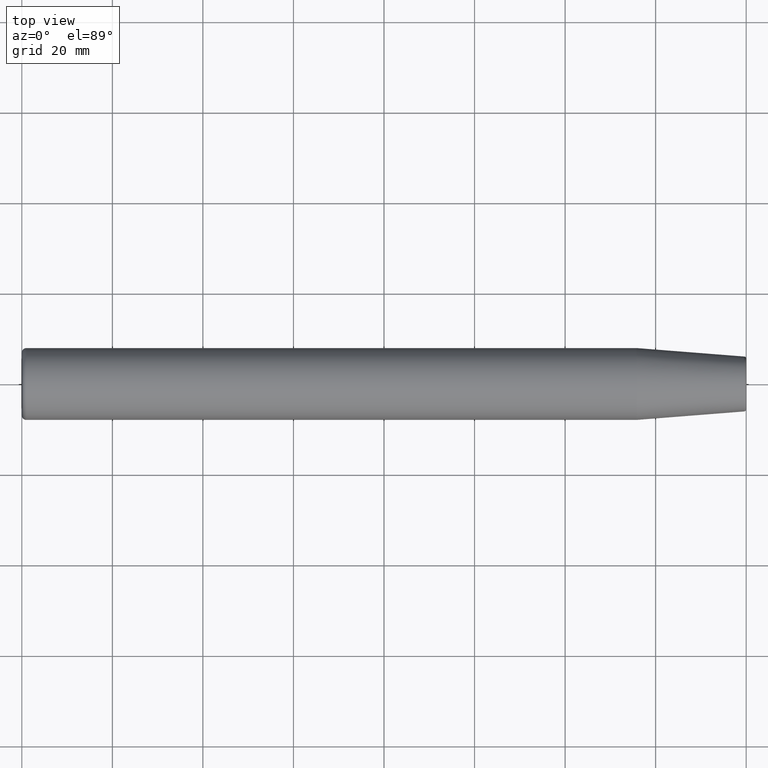
[diagram: clean part render]
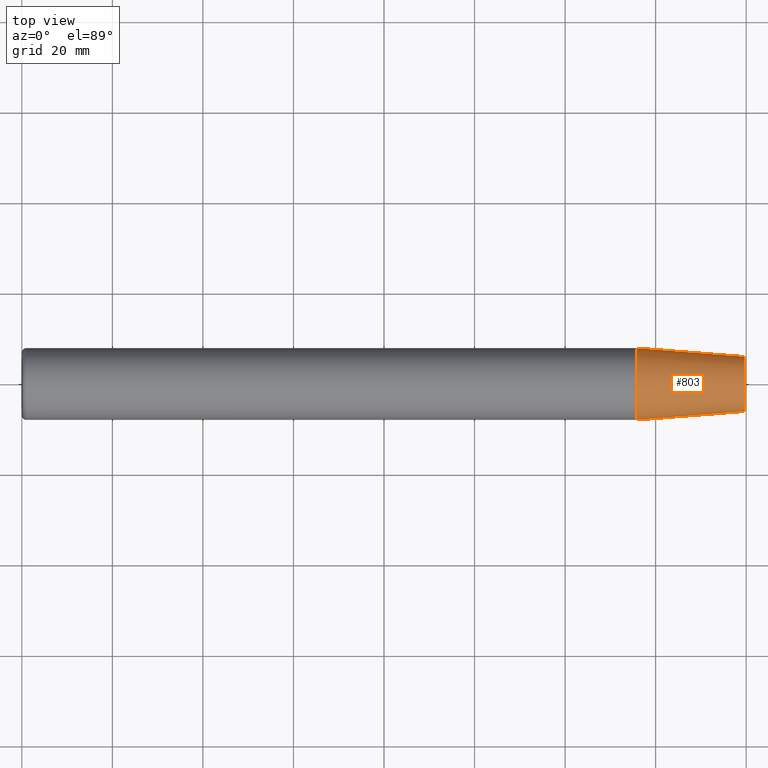
[diagram: same view with one face highlighted and labeled with its STEP entity id]
A machine part, top view. The second image highlights one B-rep face of the part: STEP entity #803.
In plain terms, the highlighted conical surface has half-angle 4.5 deg.
Its self-contained STEP definition (entity closure, byte-faithful):
#266=DIRECTION('',(-9.969173337331E-1,7.845909572785E-2,0.E0));
#267=VECTOR('',#266,2.383390429899E1);
#268=CARTESIAN_POINT('',(1.595392295479E2,6.067513421038E0,0.E0));
#269=LINE('',#268,#267);
#270=DIRECTION('',(-9.969173337331E-1,-7.845909572785E-2,0.E0));
#271=VECTOR('',#270,2.383390429899E1);
#272=CARTESIAN_POINT('',(1.595392295479E2,-6.067513421038E0,0.E0));
#273=LINE('',#272,#271);
#279=CARTESIAN_POINT('',(1.595392295479E2,0.E0,0.E0));
#280=DIRECTION('',(1.E0,0.E0,0.E0));
#281=DIRECTION('',(0.E0,1.E0,0.E0));
#282=AXIS2_PLACEMENT_3D('',#279,#280,#281);
#284=CARTESIAN_POINT('',(1.357787972217E2,0.E0,0.E0));
#285=DIRECTION('',(1.E0,0.E0,0.E0));
#286=DIRECTION('',(0.E0,1.E0,0.E0));
#287=AXIS2_PLACEMENT_3D('',#284,#285,#286);
#333=CARTESIAN_POINT('',(1.595392295479E2,6.067513421038E0,0.E0));
#335=VERTEX_POINT('',#333);
#336=CARTESIAN_POINT('',(1.357787972217E2,7.9375E0,0.E0));
#337=VERTEX_POINT('',#336);
#369=CARTESIAN_POINT('',(1.595392295479E2,-6.067513421038E0,0.E0));
#371=VERTEX_POINT('',#369);
#372=CARTESIAN_POINT('',(1.357787972217E2,-7.9375E0,0.E0));
#373=VERTEX_POINT('',#372);
#791=CARTESIAN_POINT('',(1.476590133848E2,0.E0,0.E0));
#792=DIRECTION('',(-1.E0,0.E0,0.E0));
#793=DIRECTION('',(0.E0,1.E0,0.E0));
#794=AXIS2_PLACEMENT_3D('',#791,#792,#793);
#795=CONICAL_SURFACE('',#794,7.002506710519E0,4.5E0);
#796=ORIENTED_EDGE('',*,*,#781,.F.);
#797=ORIENTED_EDGE('',*,*,#758,.T.);
#798=ORIENTED_EDGE('',*,*,#785,.T.);
#800=ORIENTED_EDGE('',*,*,#799,.F.);
#801=EDGE_LOOP('',(#796,#797,#798,#800));
#802=FACE_OUTER_BOUND('',#801,.F.);
#803=ADVANCED_FACE('',(#802),#795,.T.);
#283=CIRCLE('',#282,6.067513421038E0);
#288=CIRCLE('',#287,7.9375E0);
#758=EDGE_CURVE('',#335,#371,#283,.T.);
#781=EDGE_CURVE('',#335,#337,#269,.T.);
#785=EDGE_CURVE('',#371,#373,#273,.T.);
#799=EDGE_CURVE('',#337,#373,#288,.T.);